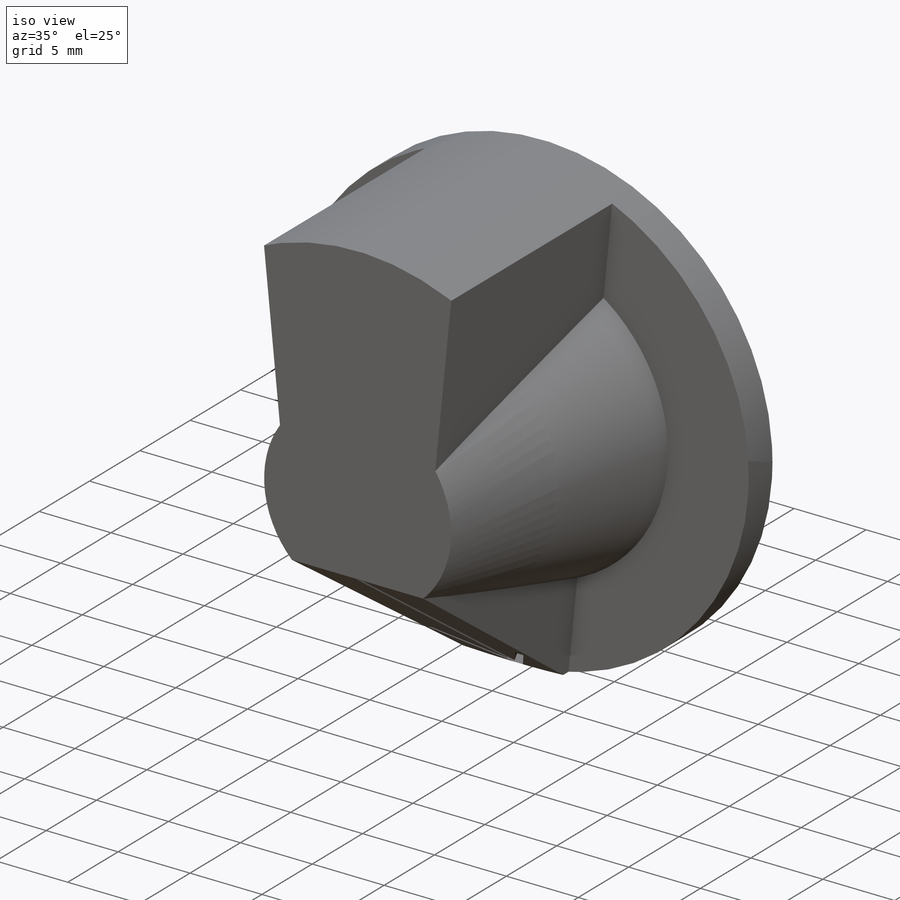
[diagram: iso view]
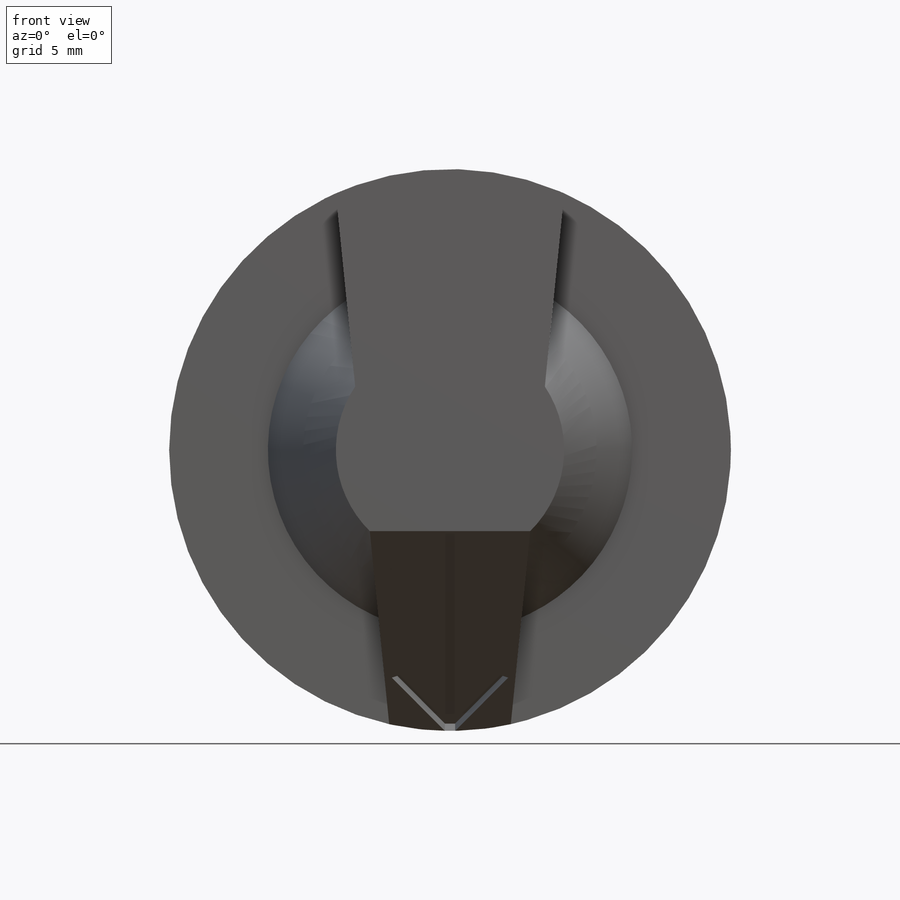
[diagram: front view]
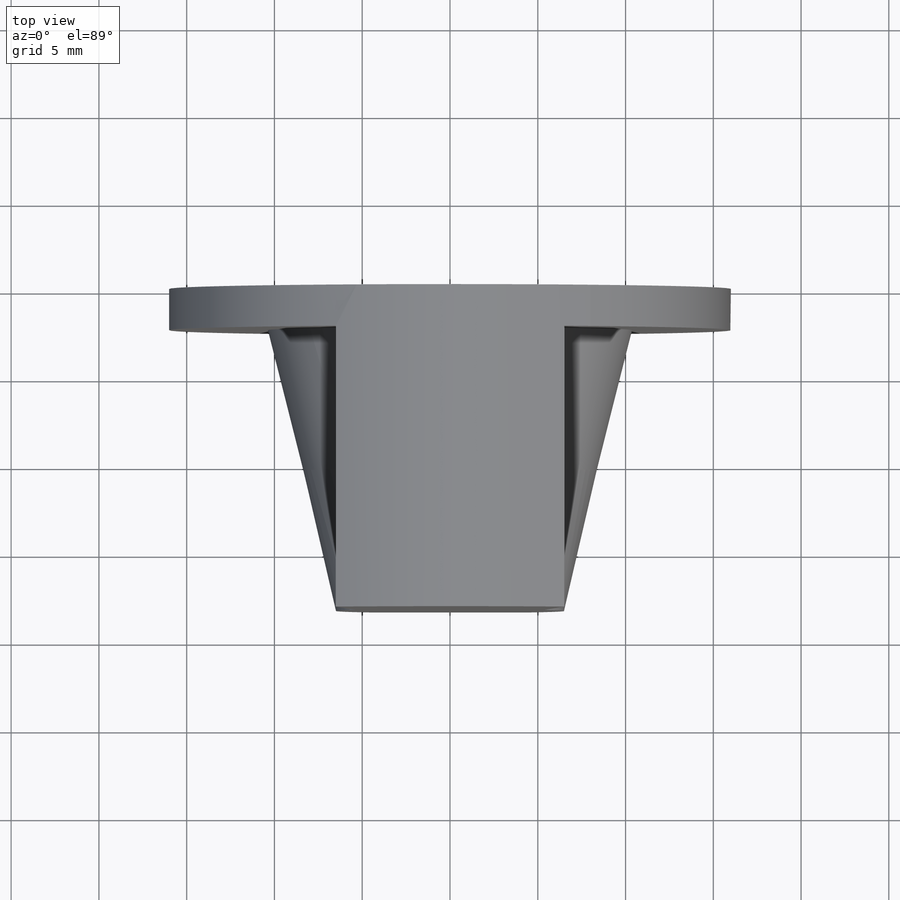
[diagram: top view]
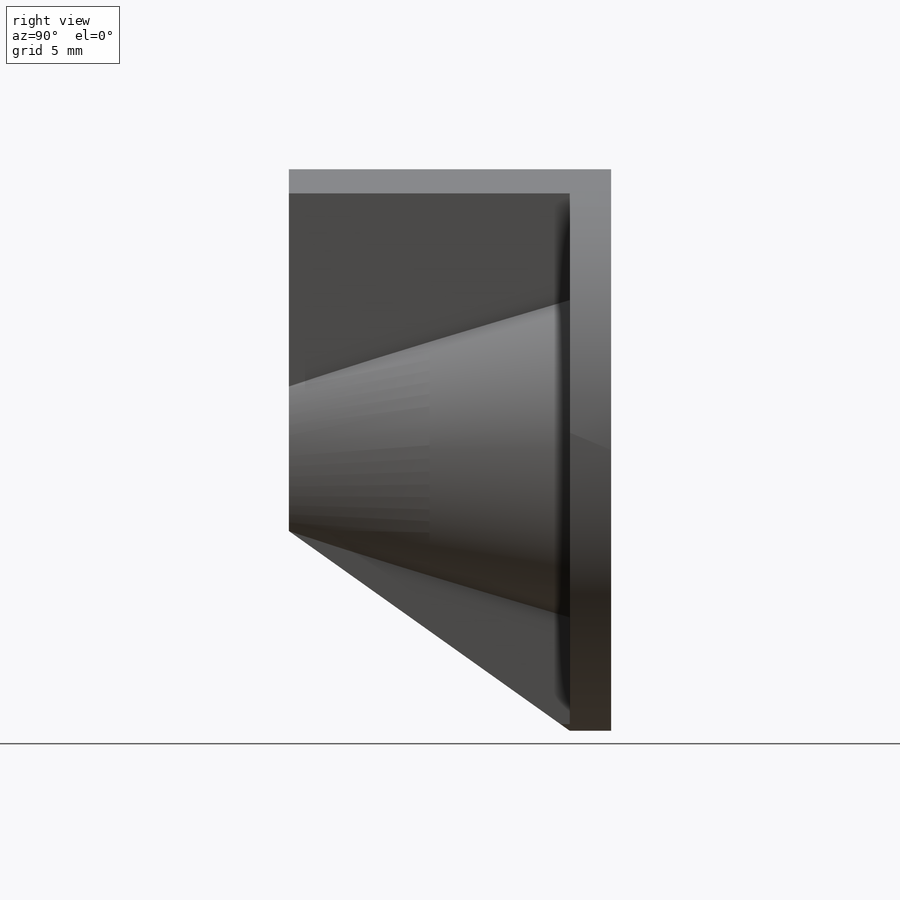
[diagram: right view]
SOLIDWORKS PART (.sldprt)
format: sldprt  version: not decoded by parser v0  size: 230,400 bytes
history: native  units: mm
features: sketch x6, extrude x2, cut_extrude x2, material x1 (+16 scaffold rows collapsed)
feature tree (27):
  scaffold x16  (default folders/planes/origin — collapsed)
  material  "Material <not specified>"
  sketch  "Sketch1"  dims[D1=32.0mm]
  extrude  "Extrude1"  Depth=2.35mm
  sketch  "Sketch2"  dims[D1=20.75mm]
  sketch  "Sketch3"  dims[D1=~11.208488mm]
  sketch  "Sketch4"  dims[D1=66.0deg]
  extrude  "Extrude3"  [1 undecoded]
  sketch  "3DSketch2"
  cut_extrude  "Extrude12"  [1 undecoded]
  sketch  "Sketch5"  dims[c1.D3=120.0deg c2.D3=~6.183005mm c2.D1=0.254mm c2.D2=0.254mm c3.D3=0.254mm c3.D4=0.254mm c3.D1=0.254mm]
  cut_extrude  "Extrude13"  Depth=0.508mm
decode coverage: 7 of 10 modeling features carry decoded parameters
note: ~ marks probable driven/reference dimensions
note: 2 parameter values undecoded
note: suppression state not decoded; provenance and decode notes live in map.json
